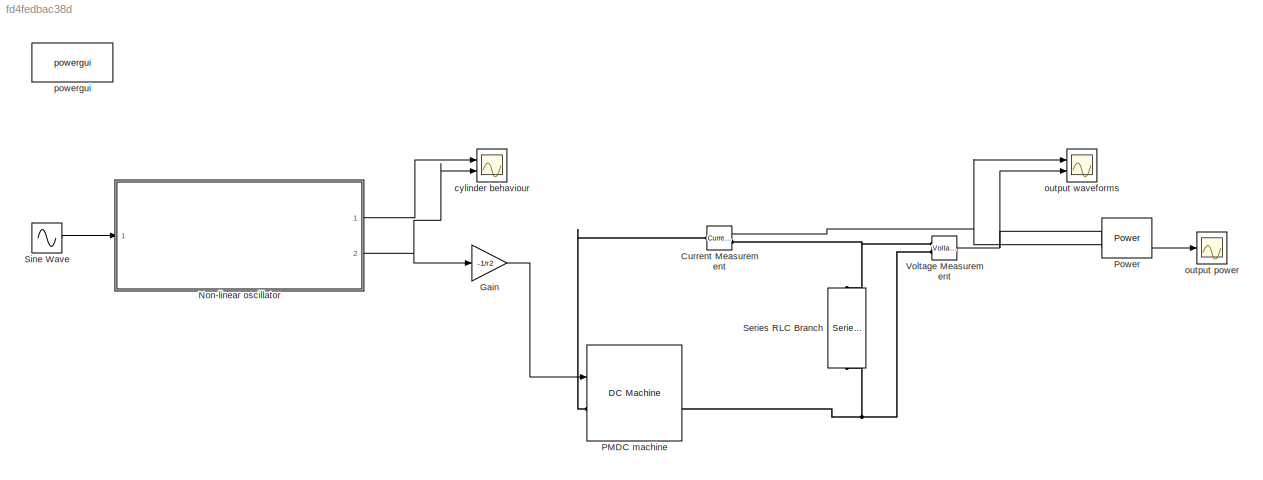
MODEL slx_fd4fedbac38d
KIND model
CONFIG AbsTol = auto
CONFIG EnableMultiTasking = off
CONFIG FixedStep = 0.0001
CONFIG MaxStep = auto
CONFIG MinStep = auto
CONFIG RelTol = 1e-3
CONFIG SampleTimeConstraint = Unconstrained
CONFIG Solver = FixedStepAuto
CONFIG SolverName = FixedStepAuto
CONFIG StartTime = 0.0
CONFIG StopTime = 20
BLOCK [Reference] Current Measurement  REF=powerlib/Measurements/Current Measurement
  Ports = [0, 1, 0, 0, 0, 1, 1]
  SourceBlock = powerlib/Measurements/Current Measurement
  SourceProductBaseCode = PS
  SourceProductName = Simscape Electrical
  SourceType = Current Measurement
  UserDataPersistent = on
BLOCK [Gain] Gain
  Gain = -1/r2
  OutDataTypeStr = Inherit: Inherit via internal rule
  ParamDataTypeStr = Inherit: Inherit via internal rule
  SaturateOnIntegerOverflow = off
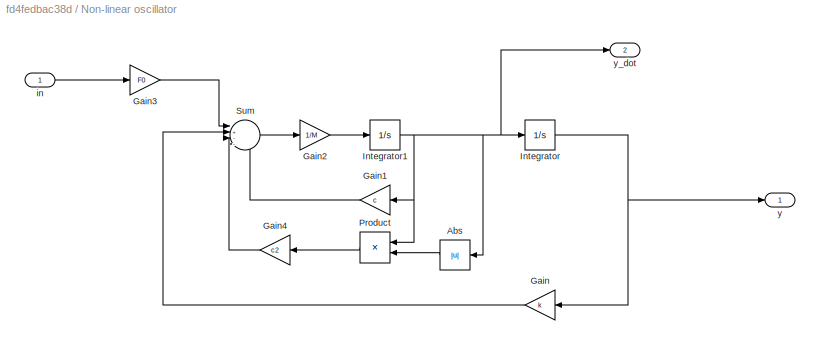
BLOCK [SubSystem] Non-linear oscillator
  Ports = [1, 2]
  RequestExecContextInheritance = off
BLOCK [Abs] Non-linear oscillator/Abs
  SaturateOnIntegerOverflow = off
BLOCK [Gain] Non-linear oscillator/Gain
  Gain = k
  OutDataTypeStr = Inherit: Inherit via internal rule
  ParamDataTypeStr = Inherit: Inherit via internal rule
  SaturateOnIntegerOverflow = off
BLOCK [Gain] Non-linear oscillator/Gain1
  Gain = c
  OutDataTypeStr = Inherit: Inherit via internal rule
  ParamDataTypeStr = Inherit: Inherit via internal rule
  SaturateOnIntegerOverflow = off
BLOCK [Gain] Non-linear oscillator/Gain2
  Gain = 1/M
  OutDataTypeStr = Inherit: Inherit via internal rule
  ParamDataTypeStr = Inherit: Inherit via internal rule
  SaturateOnIntegerOverflow = off
BLOCK [Gain] Non-linear oscillator/Gain3
  Gain = F0
  OutDataTypeStr = Inherit: Inherit via internal rule
  ParamDataTypeStr = Inherit: Inherit via internal rule
  SaturateOnIntegerOverflow = off
BLOCK [Gain] Non-linear oscillator/Gain4
  Gain = c2
  OutDataTypeStr = Inherit: Inherit via internal rule
  ParamDataTypeStr = Inherit: Inherit via internal rule
  SaturateOnIntegerOverflow = off
BLOCK [Integrator] Non-linear oscillator/Integrator
  Ports = [1, 1]
BLOCK [Integrator] Non-linear oscillator/Integrator1
  Ports = [1, 1]
BLOCK [Product] Non-linear oscillator/Product
  InputSameDT = off
  OutDataTypeStr = Inherit: Inherit via internal rule
  Ports = [2, 1]
  RndMeth = Floor
  SaturateOnIntegerOverflow = off
BLOCK [Sum] Non-linear oscillator/Sum
  IconShape = round
  InputSameDT = off
  Inputs = |+---
  OutDataTypeStr = Inherit: Inherit via internal rule
  Ports = [4, 1]
  SaturateOnIntegerOverflow = off
BLOCK [Inport] Non-linear oscillator/in
  IconDisplay = Port number
BLOCK [Outport] Non-linear oscillator/y
  IconDisplay = Port number
BLOCK [Outport] Non-linear oscillator/y_dot
  IconDisplay = Port number
  Port = 2
BLOCK [Reference] PMDC machine   REF=powerlib/Machines/DC Machine
  Ports = [1, 1, 0, 0, 0, 1, 1]
  SourceBlock = powerlib/Machines/DC Machine
  SourceProductBaseCode = PS
  SourceProductName = Simscape Electrical
  SourceType = DC machine
BLOCK [Reference] Power  REF=powerlib_meascontrol/Measurements/Power
  Ports = [2, 2]
  SourceBlock = powerlib_meascontrol/Measurements/Power
  SourceProductBaseCode = PS
  SourceProductName = Simscape Electrical
  SourceType = Power
BLOCK [Reference] Series RLC Branch  REF=powerlib/Elements/Series RLC Branch
  Ports = [0, 0, 0, 0, 0, 1, 1]
  SourceBlock = powerlib/Elements/Series RLC Branch
  SourceProductBaseCode = PS
  SourceProductName = Simscape Electrical
  SourceType = Series RLC Branch
BLOCK [Sin] Sine Wave
  Frequency = 2*pi*fv
  Ports = [0, 1]
  SampleTime = 0
BLOCK [Reference] Voltage Measurement  REF=powerlib/Measurements/Voltage Measurement
  Ports = [0, 1, 0, 0, 0, 2]
  SourceBlock = powerlib/Measurements/Voltage Measurement
  SourceProductBaseCode = PS
  SourceProductName = Simscape Electrical
  SourceType = Voltage Measurement
  UserDataPersistent = on
BLOCK [Scope] cylinder behaviour
  Floating = off
  NumInputPorts = 2
  Ports = [2]
  ScopeSpecificationString = Simulink.scopes.TimeScopeBlockCfg('CurrentConfiguration', extmgr.ConfigurationSet(extmgr.Configuration('Core','General UI',true),extmgr.Configuration('Core','Source UI',true),extmgr.Configuration('Sources','WiredSimulink',true),extmgr.Configuration('Visuals','Time Domain',true,'SerializedDisplays',{struct('MinYLimReal','-0.05111','MaxYLimReal','0.03436','YLabelReal','','MinYLimMag','0.00000','MaxY...<+2117ch>
BLOCK [Scope] output power
  Floating = off
  NumInputPorts = 1
  Ports = [1]
  ScopeSpecificationString = Simulink.scopes.TimeScopeBlockCfg('CurrentConfiguration', extmgr.ConfigurationSet(extmgr.Configuration('Core','General UI',true),extmgr.Configuration('Core','Source UI',true),extmgr.Configuration('Sources','WiredSimulink',true,'DataLoggingVariableName','ScopeData1'),extmgr.Configuration('Visuals','Time Domain',true,'SerializedDisplays',{struct('MinYLimReal','-0.00209','MaxYLimReal','0.01882','YLab...<+1724ch>
BLOCK [Scope] output waveforms
  Floating = off
  NumInputPorts = 2
  Ports = [2]
  ScopeSpecificationString = Simulink.scopes.TimeScopeBlockCfg('CurrentConfiguration', extmgr.ConfigurationSet(extmgr.Configuration('Core','General UI',true),extmgr.Configuration('Core','Source UI',true),extmgr.Configuration('Sources','WiredSimulink',true,'DataLoggingVariableName','ScopeData2'),extmgr.Configuration('Visuals','Time Domain',true,'SerializedDisplays',{struct('MinYLimReal','-8.54807','MaxYLimReal','8.54855','YLab...<+1810ch>
BLOCK [Reference] powergui  REF=powerlib/powergui
  Ports = []
  Priority = 1
  SourceBlock = powerlib/powergui
  SourceProductBaseCode = PS
  SourceProductName = Simscape Electrical
  SourceType = PSB option menu block
NET Current Measurement:1 -> Power:2, output waveforms:1
LINE Gain:1 -> PMDC machine :1
LINE Non-linear oscillator/Abs:1 -> Non-linear oscillator/Product:2
LINE Non-linear oscillator/Gain1:1 -> Non-linear oscillator/Sum:4
LINE Non-linear oscillator/Gain2:1 -> Non-linear oscillator/Integrator1:1
LINE Non-linear oscillator/Gain3:1 -> Non-linear oscillator/Sum:1
LINE Non-linear oscillator/Gain4:1 -> Non-linear oscillator/Sum:3
LINE Non-linear oscillator/Gain:1 -> Non-linear oscillator/Sum:2
NET Non-linear oscillator/Integrator1:1 -> Non-linear oscillator/Abs:1, Non-linear oscillator/Gain1:1, Non-linear oscillator/Integrator:1, Non-linear oscillator/Product:1, Non-linear oscillator/y_dot:1
NET Non-linear oscillator/Integrator:1 -> Non-linear oscillator/Gain:1, Non-linear oscillator/y:1
LINE Non-linear oscillator/Product:1 -> Non-linear oscillator/Gain4:1
LINE Non-linear oscillator/Sum:1 -> Non-linear oscillator/Gain2:1
LINE Non-linear oscillator/in:1 -> Non-linear oscillator/Gain3:1
LINE Non-linear oscillator:1 -> cylinder behaviour:1
NET Non-linear oscillator:2 -> Gain:1, cylinder behaviour:2
LINE Power:1 -> output power:1
LINE Sine Wave:1 -> Non-linear oscillator:1
NET Voltage Measurement:1 -> Power:1, output waveforms:2
PLINE Current Measurement:LConn1 -- PMDC machine :LConn1
PNET net1: Current Measurement:RConn1 -- Series RLC Branch:LConn1 -- Voltage Measurement:LConn1
PNET net2: PMDC machine :RConn1 -- Series RLC Branch:RConn1 -- Voltage Measurement:LConn2
note: NET lines group one-source signal fan-out (src -> all destinations, sorted); 1:1 wires keep LINE; PNET lines group multi-terminal physical nets as a canonical sorted terminal list (undirected conserving connections); 2-terminal nets keep the pairwise PLINE form
